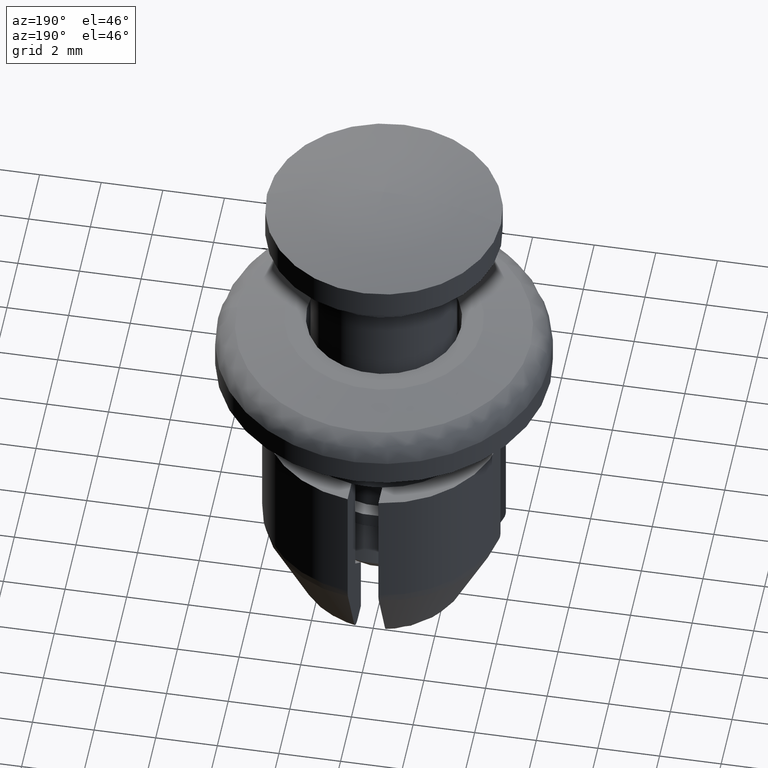
[diagram: clean part render]
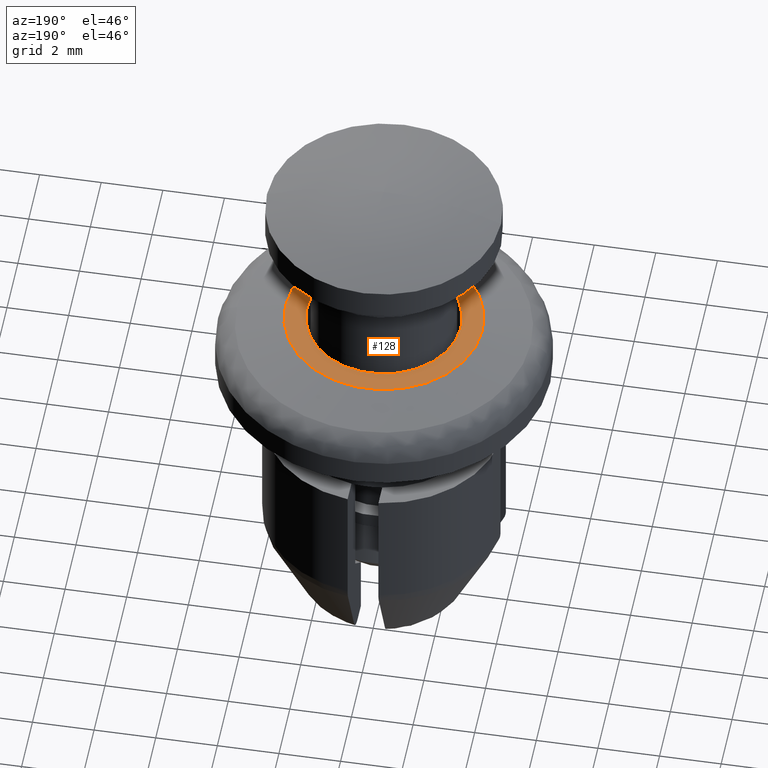
[diagram: same view with one face highlighted and labeled with its STEP entity id]
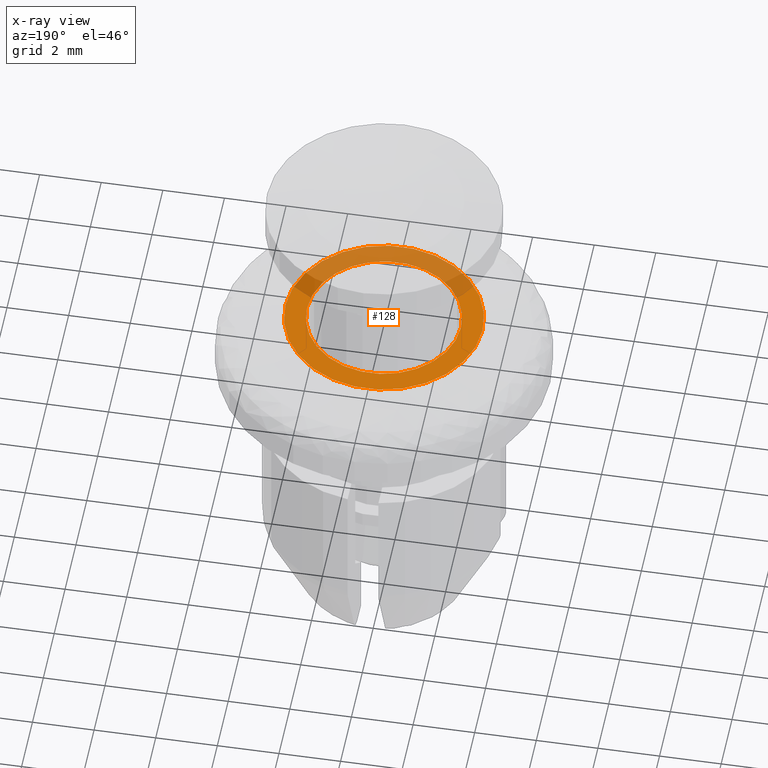
[diagram: x-ray of the same camera — body ghosted, the highlighted face saturated]
A machine part, auxiliary view. The second image highlights one B-rep face of the part: STEP entity #128.
The next image is the same camera in x-ray: the body ghosted, the highlighted face saturated — about 37% of this face is hidden behind the body in this view.
In plain terms, the highlighted planar face has unit normal (0, 0, 1).
Its self-contained STEP definition (entity closure, byte-faithful):
#128=ADVANCED_FACE('',(#352,#353),#351,.T.);
#351=PLANE('',#1088);
#352=FACE_OUTER_BOUND('',#1089,.T.);
#353=FACE_BOUND('',#1090,.T.);
#1085=CARTESIAN_POINT('',(-4.16000000000E+00,-6.65107510106E+00,0.00000000000E+00));
#1086=DIRECTION('',(0.00000000000E+00,0.00000000000E+00,1.00000000000E+00));
#1087=DIRECTION('',(1.00000000000E+00,0.00000000000E+00,0.00000000000E+00));
#1088=AXIS2_PLACEMENT_3D('',#1085,#1086,#1087);
#1089=EDGE_LOOP('',(#1644,#1645));
#1090=EDGE_LOOP('',(#1646,#1647));
#1644=ORIENTED_EDGE('',*,*,#2021,.F.);
#1645=ORIENTED_EDGE('',*,*,#2022,.F.);
#1646=ORIENTED_EDGE('',*,*,#2023,.F.);
#1647=ORIENTED_EDGE('',*,*,#2024,.F.);
#2021=EDGE_CURVE('',#2655,#2656,#2657,.T.);
#2022=EDGE_CURVE('',#2656,#2655,#2663,.T.);
#2023=EDGE_CURVE('',#2669,#2670,#2671,.T.);
#2024=EDGE_CURVE('',#2670,#2669,#2677,.T.);
#2655=VERTEX_POINT('',#3785);
#2656=VERTEX_POINT('',#3786);
#2657=CIRCLE('',#3790,3.20000000000E+00);
#2663=CIRCLE('',#3794,3.20000000000E+00);
#2669=VERTEX_POINT('',#3795);
#2670=VERTEX_POINT('',#3796);
#2671=CIRCLE('',#3800,2.50000000000E+00);
#2677=CIRCLE('',#3804,2.50000000000E+00);
#3785=CARTESIAN_POINT('',(3.20000000000E+00,1.48029736617E-16,0.00000000000E+00));
#3786=CARTESIAN_POINT('',(-3.20000000000E+00,0.00000000000E+00,0.00000000000E+00));
#3787=CARTESIAN_POINT('',(0.00000000000E+00,0.00000000000E+00,0.00000000000E+00));
#3788=DIRECTION('',(-0.00000000000E+00,0.00000000000E+00,-1.00000000000E+00));
#3789=DIRECTION('',(-1.00000000000E+00,-1.22460635382E-16,0.00000000000E+00));
#3790=AXIS2_PLACEMENT_3D('',#3787,#3788,#3789);
#3791=CARTESIAN_POINT('',(0.00000000000E+00,0.00000000000E+00,0.00000000000E+00));
#3792=DIRECTION('',(-0.00000000000E+00,0.00000000000E+00,-1.00000000000E+00));
#3793=DIRECTION('',(-1.00000000000E+00,-1.22460635382E-16,0.00000000000E+00));
#3794=AXIS2_PLACEMENT_3D('',#3791,#3792,#3793);
#3795=CARTESIAN_POINT('',(2.50000000000E+00,2.96059473233E-16,0.00000000000E+00));
#3796=CARTESIAN_POINT('',(-2.50000000000E+00,0.00000000000E+00,0.00000000000E+00));
#3797=CARTESIAN_POINT('',(0.00000000000E+00,0.00000000000E+00,0.00000000000E+00));
#3798=DIRECTION('',(0.00000000000E+00,0.00000000000E+00,1.00000000000E+00));
#3799=DIRECTION('',(-1.00000000000E+00,-1.22460635382E-16,0.00000000000E+00));
#3800=AXIS2_PLACEMENT_3D('',#3797,#3798,#3799);
#3801=CARTESIAN_POINT('',(0.00000000000E+00,0.00000000000E+00,0.00000000000E+00));
#3802=DIRECTION('',(0.00000000000E+00,0.00000000000E+00,1.00000000000E+00));
#3803=DIRECTION('',(-1.00000000000E+00,-1.22460635382E-16,0.00000000000E+00));
#3804=AXIS2_PLACEMENT_3D('',#3801,#3802,#3803);